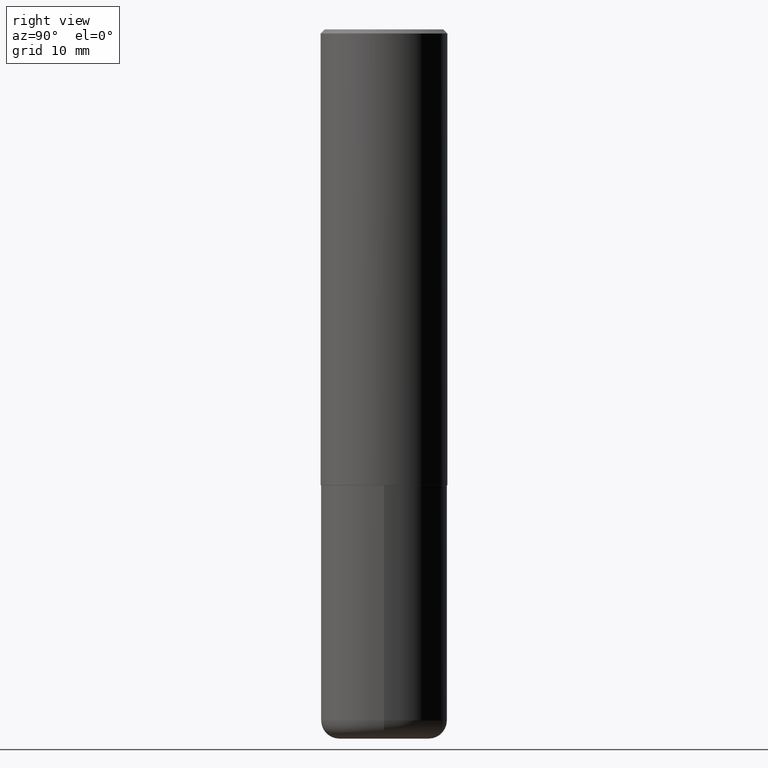
[diagram: clean part render]
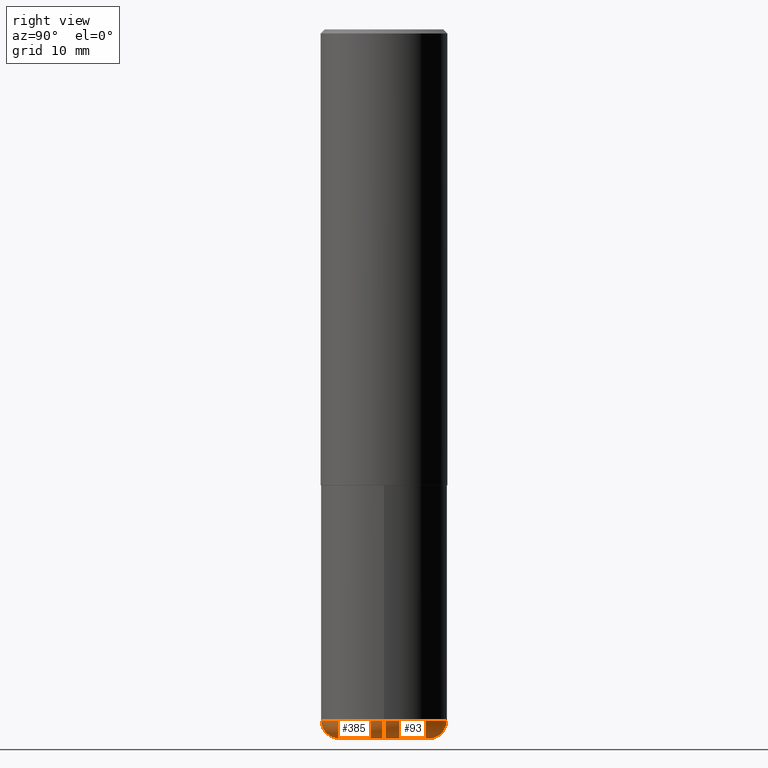
[diagram: same view with one multi-face feature highlighted, each face labeled with its STEP entity id]
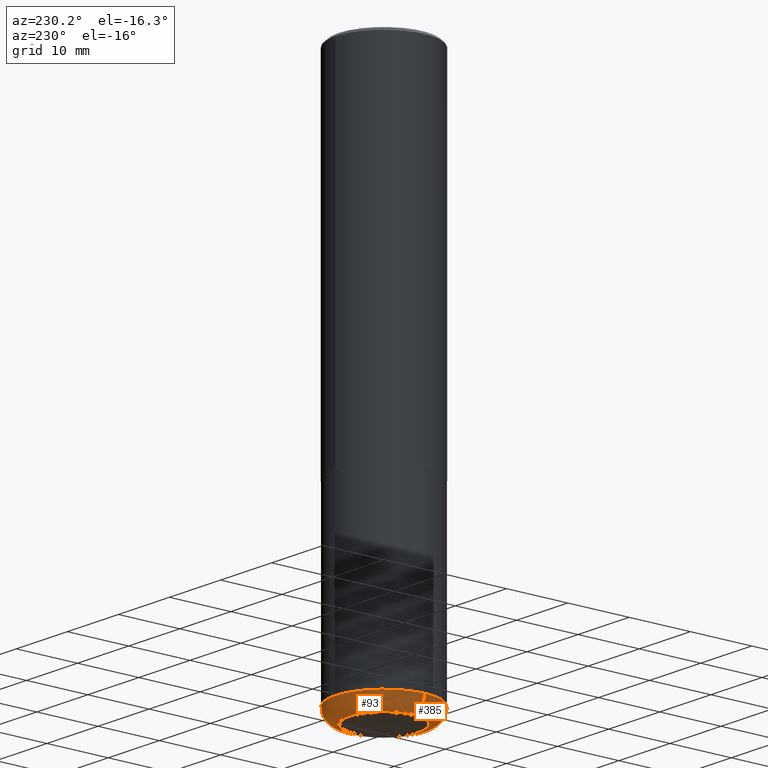
[diagram: same view with one multi-face feature highlighted, each face labeled with its STEP entity id]
A machine part, right view. The highlighted faces form ONE feature: a constant-radius fillet chain: 2 tangent blend faces with common blend radius 2.286 mm. The faces share edges in the B-rep.
A second angle (auxiliary view) of the same feature is appended — it is thin or edge-on in the first view.
Their STEP definitions:
[1] entity #93 (Torus):
#7 = CARTESIAN_POINT ( 'NONE',  ( 0.3124999999999998890, -1.408812720223208442E-14, -3.410000000000000142 ) ) ;
#14 = EDGE_CURVE ( 'NONE', #58, #114, #204, .T. ) ;
#15 = DIRECTION ( 'NONE',  ( 7.105427357601001859E-15, 1.000000000000000000, -3.491481338843145583E-15 ) ) ;
#42 = DIRECTION ( 'NONE',  ( 1.000000000000000000, -6.982962677686269077E-15, 0.000000000000000000 ) ) ;
#46 = CARTESIAN_POINT ( 'NONE',  ( 8.339048629091315302E-29, -1.190595136545512608E-14, -3.410000000000000142 ) ) ;
#49 = DIRECTION ( 'NONE',  ( -2.445468806185136597E-29, 3.491481338843145583E-15, 1.000000000000000000 ) ) ;
#51 = DIRECTION ( 'NONE',  ( -1.000000000000000000, 7.105427357600996337E-15, 0.000000000000000000 ) ) ;
#58 = VERTEX_POINT ( 'NONE', #331 ) ;
#72 = DIRECTION ( 'NONE',  ( 1.000000000000000000, -6.982962677686264344E-15, 4.883557194083111780E-29 ) ) ;
#78 = CARTESIAN_POINT ( 'NONE',  ( -0.2225000000000000033, -1.032499377838890215E-14, -3.410000000000000142 ) ) ;
#83 = CIRCLE ( 'NONE', #134, 0.2225000000000000033 ) ;
#87 = EDGE_LOOP ( 'NONE', ( #363, #374, #341, #332 ) ) ;
#89 = CIRCLE ( 'NONE', #313, 0.08999999999999964972 ) ;
#93 = ADVANCED_FACE ( 'NONE', ( #100 ), #220, .T. ) ;
#100 = FACE_OUTER_BOUND ( 'NONE', #87, .T. ) ;
#114 = VERTEX_POINT ( 'NONE', #7 ) ;
#134 = AXIS2_PLACEMENT_3D ( 'NONE', #266, #327, #42 ) ;
#138 = DIRECTION ( 'NONE',  ( 1.000000000000000000, -6.982962677686269077E-15, 0.000000000000000000 ) ) ;
#189 = CARTESIAN_POINT ( 'NONE',  ( -0.2225000000000000033, -1.016236620754480236E-14, -3.499999999999999112 ) ) ;
#195 = EDGE_CURVE ( 'NONE', #114, #401, #312, .T. ) ;
#201 = EDGE_CURVE ( 'NONE', #58, #399, #83, .T. ) ;
#204 = CIRCLE ( 'NONE', #305, 0.08999999999999964972 ) ;
#220 = TOROIDAL_SURFACE ( 'NONE', #345, 0.2225000000000000033, 0.08999999999999964972 ) ;
#266 = CARTESIAN_POINT ( 'NONE',  ( 8.559140821647976968E-29, -1.222018468595100619E-14, -3.499999999999999112 ) ) ;
#300 = EDGE_CURVE ( 'NONE', #399, #401, #89, .T. ) ;
#305 = AXIS2_PLACEMENT_3D ( 'NONE', #373, #379, #376 ) ;
#312 = CIRCLE ( 'NONE', #371, 0.3125000000000000000 ) ;
#313 = AXIS2_PLACEMENT_3D ( 'NONE', #78, #15, #51 ) ;
#320 = CARTESIAN_POINT ( 'NONE',  ( -0.3124999999999998890, -9.685505316204812997E-15, -3.410000000000000142 ) ) ;
#327 = DIRECTION ( 'NONE',  ( -2.445468806185136597E-29, 3.491481338843145583E-15, 1.000000000000000000 ) ) ;
#331 = CARTESIAN_POINT ( 'NONE',  ( 0.2225000000000000033, -1.377389388173620116E-14, -3.499999999999999112 ) ) ;
#332 = ORIENTED_EDGE ( 'NONE', *, *, #14, .F. ) ;
#341 = ORIENTED_EDGE ( 'NONE', *, *, #195, .F. ) ;
#345 = AXIS2_PLACEMENT_3D ( 'NONE', #46, #417, #72 ) ;
#357 = CARTESIAN_POINT ( 'NONE',  ( 8.339048629091315302E-29, -1.190595136545512608E-14, -3.410000000000000142 ) ) ;
#363 = ORIENTED_EDGE ( 'NONE', *, *, #201, .T. ) ;
#371 = AXIS2_PLACEMENT_3D ( 'NONE', #357, #49, #138 ) ;
#373 = CARTESIAN_POINT ( 'NONE',  ( 0.2225000000000000033, -1.345966056124032105E-14, -3.410000000000000142 ) ) ;
#374 = ORIENTED_EDGE ( 'NONE', *, *, #300, .T. ) ;
#376 = DIRECTION ( 'NONE',  ( 1.000000000000000000, -6.982962677686273810E-15, 0.000000000000000000 ) ) ;
#379 = DIRECTION ( 'NONE',  ( -6.982962677686266711E-15, -1.000000000000000000, 3.491481338843145583E-15 ) ) ;
#399 = VERTEX_POINT ( 'NONE', #189 ) ;
#401 = VERTEX_POINT ( 'NONE', #320 ) ;
#417 = DIRECTION ( 'NONE',  ( -2.445468806185136597E-29, 3.491481338843145583E-15, 1.000000000000000000 ) ) ;
[2] entity #385 (Torus):
#3 = CIRCLE ( 'NONE', #415, 0.3125000000000000000 ) ;
#7 = CARTESIAN_POINT ( 'NONE',  ( 0.3124999999999998890, -1.408812720223208442E-14, -3.410000000000000142 ) ) ;
#14 = EDGE_CURVE ( 'NONE', #58, #114, #204, .T. ) ;
#15 = DIRECTION ( 'NONE',  ( 7.105427357601001859E-15, 1.000000000000000000, -3.491481338843145583E-15 ) ) ;
#33 = EDGE_CURVE ( 'NONE', #399, #58, #264, .T. ) ;
#51 = DIRECTION ( 'NONE',  ( -1.000000000000000000, 7.105427357600996337E-15, 0.000000000000000000 ) ) ;
#58 = VERTEX_POINT ( 'NONE', #331 ) ;
#71 = CARTESIAN_POINT ( 'NONE',  ( 8.339048629091315302E-29, -1.190595136545512608E-14, -3.410000000000000142 ) ) ;
#78 = CARTESIAN_POINT ( 'NONE',  ( -0.2225000000000000033, -1.032499377838890215E-14, -3.410000000000000142 ) ) ;
#89 = CIRCLE ( 'NONE', #313, 0.08999999999999964972 ) ;
#102 = AXIS2_PLACEMENT_3D ( 'NONE', #284, #225, #409 ) ;
#109 = CARTESIAN_POINT ( 'NONE',  ( 8.559140821647976968E-29, -1.222018468595100619E-14, -3.499999999999999112 ) ) ;
#114 = VERTEX_POINT ( 'NONE', #7 ) ;
#125 = AXIS2_PLACEMENT_3D ( 'NONE', #109, #268, #301 ) ;
#139 = ORIENTED_EDGE ( 'NONE', *, *, #33, .T. ) ;
#176 = EDGE_CURVE ( 'NONE', #401, #114, #3, .T. ) ;
#189 = CARTESIAN_POINT ( 'NONE',  ( -0.2225000000000000033, -1.016236620754480236E-14, -3.499999999999999112 ) ) ;
#202 = DIRECTION ( 'NONE',  ( -2.445468806185136597E-29, 3.491481338843145583E-15, 1.000000000000000000 ) ) ;
#204 = CIRCLE ( 'NONE', #305, 0.08999999999999964972 ) ;
#225 = DIRECTION ( 'NONE',  ( -2.445468806185136597E-29, 3.491481338843145583E-15, 1.000000000000000000 ) ) ;
#244 = FACE_OUTER_BOUND ( 'NONE', #370, .T. ) ;
#245 = ORIENTED_EDGE ( 'NONE', *, *, #300, .F. ) ;
#247 = ORIENTED_EDGE ( 'NONE', *, *, #176, .F. ) ;
#264 = CIRCLE ( 'NONE', #125, 0.2225000000000000033 ) ;
#268 = DIRECTION ( 'NONE',  ( -2.445468806185136597E-29, 3.491481338843145583E-15, 1.000000000000000000 ) ) ;
#284 = CARTESIAN_POINT ( 'NONE',  ( 8.339048629091315302E-29, -1.190595136545512608E-14, -3.410000000000000142 ) ) ;
#300 = EDGE_CURVE ( 'NONE', #399, #401, #89, .T. ) ;
#301 = DIRECTION ( 'NONE',  ( 1.000000000000000000, -6.982962677686269077E-15, 0.000000000000000000 ) ) ;
#305 = AXIS2_PLACEMENT_3D ( 'NONE', #373, #379, #376 ) ;
#313 = AXIS2_PLACEMENT_3D ( 'NONE', #78, #15, #51 ) ;
#320 = CARTESIAN_POINT ( 'NONE',  ( -0.3124999999999998890, -9.685505316204812997E-15, -3.410000000000000142 ) ) ;
#322 = TOROIDAL_SURFACE ( 'NONE', #102, 0.2225000000000000033, 0.08999999999999964972 ) ;
#323 = DIRECTION ( 'NONE',  ( 1.000000000000000000, -6.982962677686269077E-15, 0.000000000000000000 ) ) ;
#331 = CARTESIAN_POINT ( 'NONE',  ( 0.2225000000000000033, -1.377389388173620116E-14, -3.499999999999999112 ) ) ;
#370 = EDGE_LOOP ( 'NONE', ( #245, #139, #408, #247 ) ) ;
#373 = CARTESIAN_POINT ( 'NONE',  ( 0.2225000000000000033, -1.345966056124032105E-14, -3.410000000000000142 ) ) ;
#376 = DIRECTION ( 'NONE',  ( 1.000000000000000000, -6.982962677686273810E-15, 0.000000000000000000 ) ) ;
#379 = DIRECTION ( 'NONE',  ( -6.982962677686266711E-15, -1.000000000000000000, 3.491481338843145583E-15 ) ) ;
#385 = ADVANCED_FACE ( 'NONE', ( #244 ), #322, .T. ) ;
#399 = VERTEX_POINT ( 'NONE', #189 ) ;
#401 = VERTEX_POINT ( 'NONE', #320 ) ;
#408 = ORIENTED_EDGE ( 'NONE', *, *, #14, .T. ) ;
#409 = DIRECTION ( 'NONE',  ( 1.000000000000000000, -6.982962677686264344E-15, 4.883557194083111780E-29 ) ) ;
#415 = AXIS2_PLACEMENT_3D ( 'NONE', #71, #202, #323 ) ;